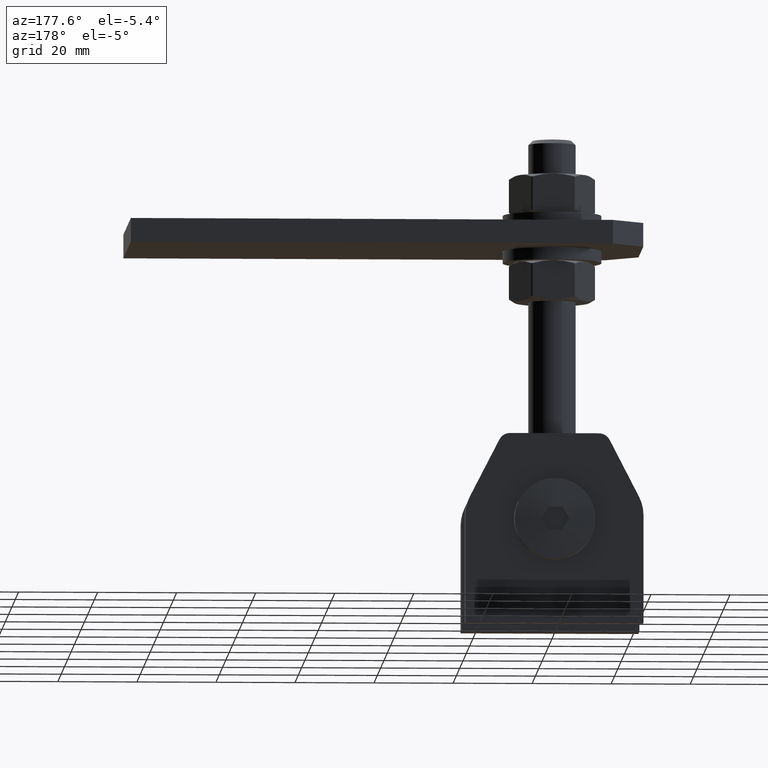
[diagram: clean part render]
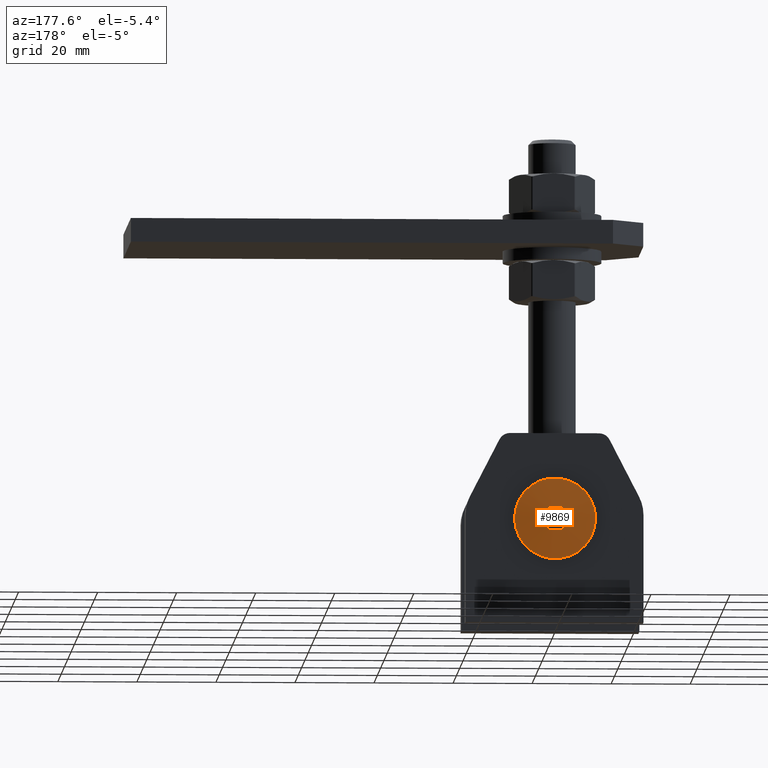
[diagram: same view with one face highlighted and labeled with its STEP entity id]
A machine part, auxiliary view. The second image highlights one B-rep face of the part: STEP entity #9869.
In plain terms, the highlighted spherical surface has radius 105.312 mm.
Its self-contained STEP definition (entity closure, byte-faithful):
#783 = DIRECTION ( 'NONE',  ( -0.8660254037844387076, -0.000000000000000000, 0.5000000000000003331 ) ) ;
#1223 = EDGE_CURVE ( 'NONE', #6415, #3205, #7242, .T. ) ;
#1605 = ORIENTED_EDGE ( 'NONE', *, *, #1223, .F. ) ;
#1845 = VERTEX_POINT ( 'NONE', #10142 ) ;
#1881 = DIRECTION ( 'NONE',  ( 0.000000000000000000, -0.000000000000000000, -1.000000000000000000 ) ) ;
#1926 = EDGE_CURVE ( 'NONE', #19083, #20976, #16556, .T. ) ;
#2866 = ORIENTED_EDGE ( 'NONE', *, *, #6036, .F. ) ;
#3120 = CARTESIAN_POINT ( 'NONE',  ( -1.732050807568874307, 18.94301128682049296, -2.999999999999998668 ) ) ;
#3205 = VERTEX_POINT ( 'NONE', #10633 ) ;
#3864 = DIRECTION ( 'NONE',  ( -1.252009581588831962E-16, -1.000000000000000000, -0.000000000000000000 ) ) ;
#4060 = EDGE_LOOP ( 'NONE', ( #12432 ) ) ;
#4107 = CARTESIAN_POINT ( 'NONE',  ( 1.732050807568879858, 18.94301128682049296, 3.000000000000000444 ) ) ;
#4532 = ORIENTED_EDGE ( 'NONE', *, *, #1926, .F. ) ;
#5682 = EDGE_LOOP ( 'NONE', ( #12573, #1605, #17880, #4532, #2866, #10781 ) ) ;
#5743 = CARTESIAN_POINT ( 'NONE',  ( 1.367399481773012244E-14, -86.31250000000021316, -3.000000000000000000 ) ) ;
#5793 = DIRECTION ( 'NONE',  ( -0.5000000000000002220, -6.301508131676953390E-14, -0.8660254037844384856 ) ) ;
#5973 = SPHERICAL_SURFACE ( 'NONE', #16442, 105.3125000000001990 ) ;
#6036 = EDGE_CURVE ( 'NONE', #14959, #19083, #15908, .T. ) ;
#6160 = DIRECTION ( 'NONE',  ( -0.000000000000000000, 0.000000000000000000, 1.000000000000000000 ) ) ;
#6184 = DIRECTION ( 'NONE',  ( 0.5000000000000001110, -6.301508131676953390E-14, 0.8660254037844384856 ) ) ;
#6415 = VERTEX_POINT ( 'NONE', #4107 ) ;
#6981 = CARTESIAN_POINT ( 'NONE',  ( 1.404957346741441077E-14, -86.31250000000021316, 3.000000000000000000 ) ) ;
#7242 = CIRCLE ( 'NONE', #8606, 105.2697613574289619 ) ;
#7378 = DIRECTION ( 'NONE',  ( 1.000000000000000000, 0.000000000000000000, 0.000000000000000000 ) ) ;
#8606 = AXIS2_PLACEMENT_3D ( 'NONE', #17746, #9227, #14293 ) ;
#8864 = FACE_OUTER_BOUND ( 'NONE', #4060, .T. ) ;
#8902 = DIRECTION ( 'NONE',  ( -1.000000000000000000, -6.301508131676955914E-14, 1.235912944235804618E-16 ) ) ;
#9227 = DIRECTION ( 'NONE',  ( -0.8660254037844388186, -0.000000000000000000, -0.4999999999999998890 ) ) ;
#9413 = CARTESIAN_POINT ( 'NONE',  ( 1.404957346741441077E-14, -86.31250000000021316, 0.000000000000000000 ) ) ;
#9869 = ADVANCED_FACE ( 'NONE', ( #12616, #8864 ), #5973, .T. ) ;
#9945 = DIRECTION ( 'NONE',  ( -0.5000000000000001110, -6.301508131676954652E-14, 0.8660254037844385966 ) ) ;
#10075 = AXIS2_PLACEMENT_3D ( 'NONE', #11868, #15006, #9945 ) ;
#10142 = CARTESIAN_POINT ( 'NONE',  ( 10.25000000000000178, 18.49999999999998934, 0.000000000000000000 ) ) ;
#10176 = AXIS2_PLACEMENT_3D ( 'NONE', #10786, #19943, #6184 ) ;
#10497 = CARTESIAN_POINT ( 'NONE',  ( 1.732050807568878970, 18.94301128682049296, -3.000000000000000000 ) ) ;
#10615 = DIRECTION ( 'NONE',  ( 1.251928832280966435E-16, 0.000000000000000000, 1.000000000000000000 ) ) ;
#10633 = CARTESIAN_POINT ( 'NONE',  ( 3.464101615137757495, 18.94301128682049296, -1.084202172485504434E-15 ) ) ;
#10781 = ORIENTED_EDGE ( 'NONE', *, *, #15783, .F. ) ;
#10786 = CARTESIAN_POINT ( 'NONE',  ( -2.598076211353310239, -86.31250000000021316, 1.500000000000005551 ) ) ;
#11245 = AXIS2_PLACEMENT_3D ( 'NONE', #17914, #783, #5793 ) ;
#11502 = CIRCLE ( 'NONE', #11245, 105.2697613574289761 ) ;
#11617 = AXIS2_PLACEMENT_3D ( 'NONE', #17671, #3864, #7378 ) ;
#11868 = CARTESIAN_POINT ( 'NONE',  ( -2.598076211353309795, -86.31250000000021316, -1.500000000000004885 ) ) ;
#12432 = ORIENTED_EDGE ( 'NONE', *, *, #12744, .F. ) ;
#12573 = ORIENTED_EDGE ( 'NONE', *, *, #16308, .F. ) ;
#12616 = FACE_OUTER_BOUND ( 'NONE', #5682, .T. ) ;
#12744 = EDGE_CURVE ( 'NONE', #1845, #1845, #15490, .T. ) ;
#14293 = DIRECTION ( 'NONE',  ( 0.4999999999999997780, -6.301508131676954652E-14, -0.8660254037844387076 ) ) ;
#14959 = VERTEX_POINT ( 'NONE', #3120 ) ;
#15006 = DIRECTION ( 'NONE',  ( 0.8660254037844387076, 0.000000000000000000, 0.5000000000000001110 ) ) ;
#15235 = DIRECTION ( 'NONE',  ( 1.000000000000000000, -6.301508131676955914E-14, 0.000000000000000000 ) ) ;
#15252 = CIRCLE ( 'NONE', #15516, 105.2697613574289477 ) ;
#15490 = CIRCLE ( 'NONE', #11617, 10.25000000000000000 ) ;
#15516 = AXIS2_PLACEMENT_3D ( 'NONE', #6981, #1881, #15235 ) ;
#15710 = EDGE_CURVE ( 'NONE', #20976, #6415, #15252, .T. ) ;
#15783 = EDGE_CURVE ( 'NONE', #18960, #14959, #19799, .T. ) ;
#15908 = CIRCLE ( 'NONE', #10075, 105.2697613574289619 ) ;
#16084 = CARTESIAN_POINT ( 'NONE',  ( -3.464101615137752166, 18.94301128682049296, 4.336808689942017736E-16 ) ) ;
#16308 = EDGE_CURVE ( 'NONE', #3205, #18960, #11502, .T. ) ;
#16442 = AXIS2_PLACEMENT_3D ( 'NONE', #9413, #6160, #19848 ) ;
#16556 = CIRCLE ( 'NONE', #10176, 105.2697613574289761 ) ;
#17671 = CARTESIAN_POINT ( 'NONE',  ( 2.316217725939337712E-15, 18.49999999999998934, 0.000000000000000000 ) ) ;
#17746 = CARTESIAN_POINT ( 'NONE',  ( 2.598076211353321341, -86.31250000000021316, 1.499999999999994449 ) ) ;
#17820 = AXIS2_PLACEMENT_3D ( 'NONE', #5743, #10615, #8902 ) ;
#17880 = ORIENTED_EDGE ( 'NONE', *, *, #15710, .F. ) ;
#17914 = CARTESIAN_POINT ( 'NONE',  ( 2.598076211353320453, -86.31250000000021316, -1.499999999999995781 ) ) ;
#17952 = CARTESIAN_POINT ( 'NONE',  ( -1.732050807568874529, 18.94301128682049296, 3.000000000000000000 ) ) ;
#18960 = VERTEX_POINT ( 'NONE', #10497 ) ;
#19083 = VERTEX_POINT ( 'NONE', #16084 ) ;
#19799 = CIRCLE ( 'NONE', #17820, 105.2697613574289477 ) ;
#19848 = DIRECTION ( 'NONE',  ( 1.000000000000000000, -1.317772136053595696E-16, 0.000000000000000000 ) ) ;
#19943 = DIRECTION ( 'NONE',  ( 0.8660254037844387076, -0.000000000000000000, -0.5000000000000002220 ) ) ;
#20976 = VERTEX_POINT ( 'NONE', #17952 ) ;